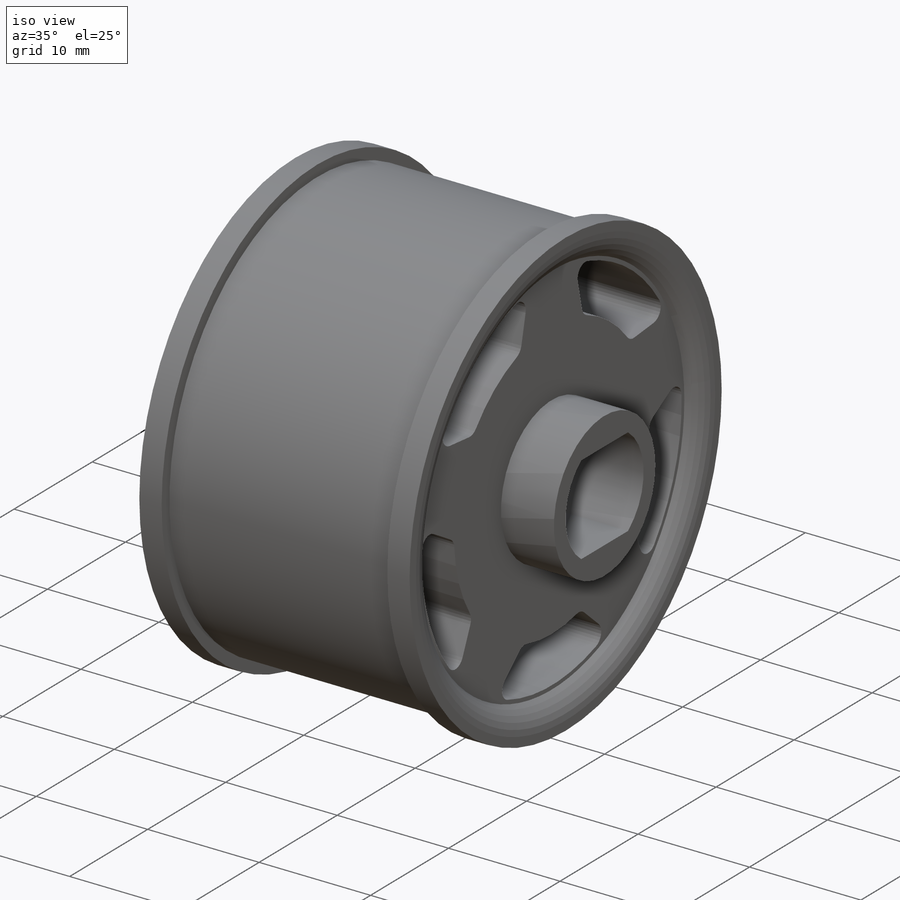
[diagram: iso view]
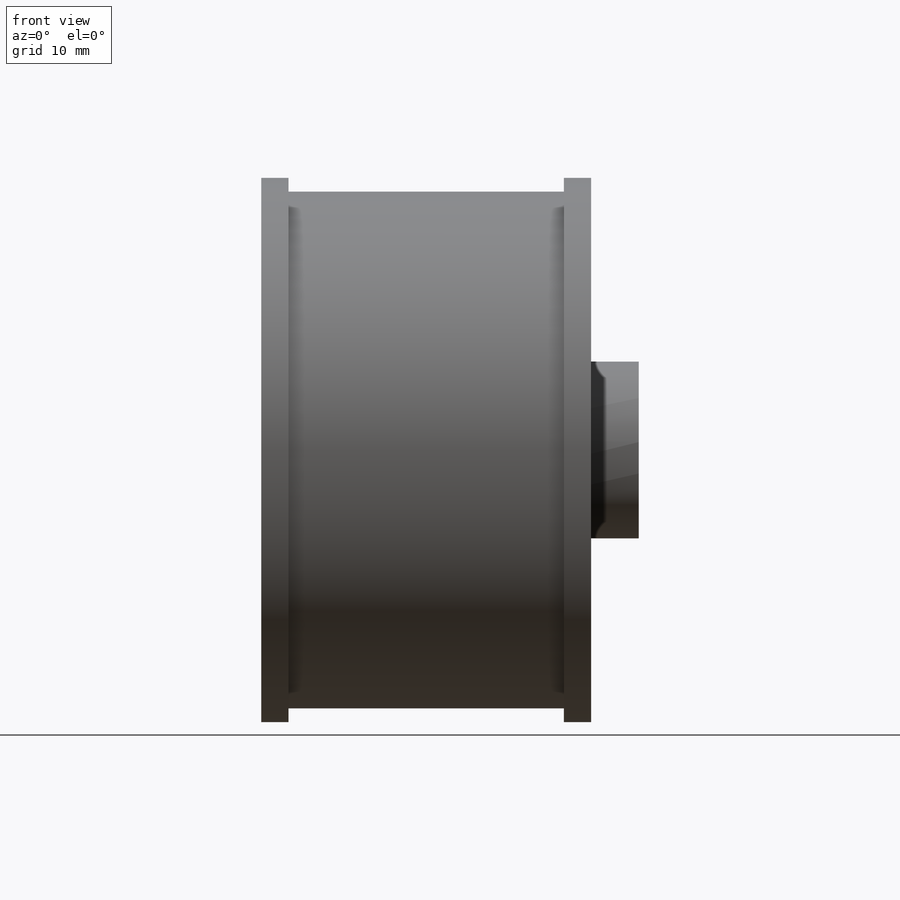
[diagram: front view]
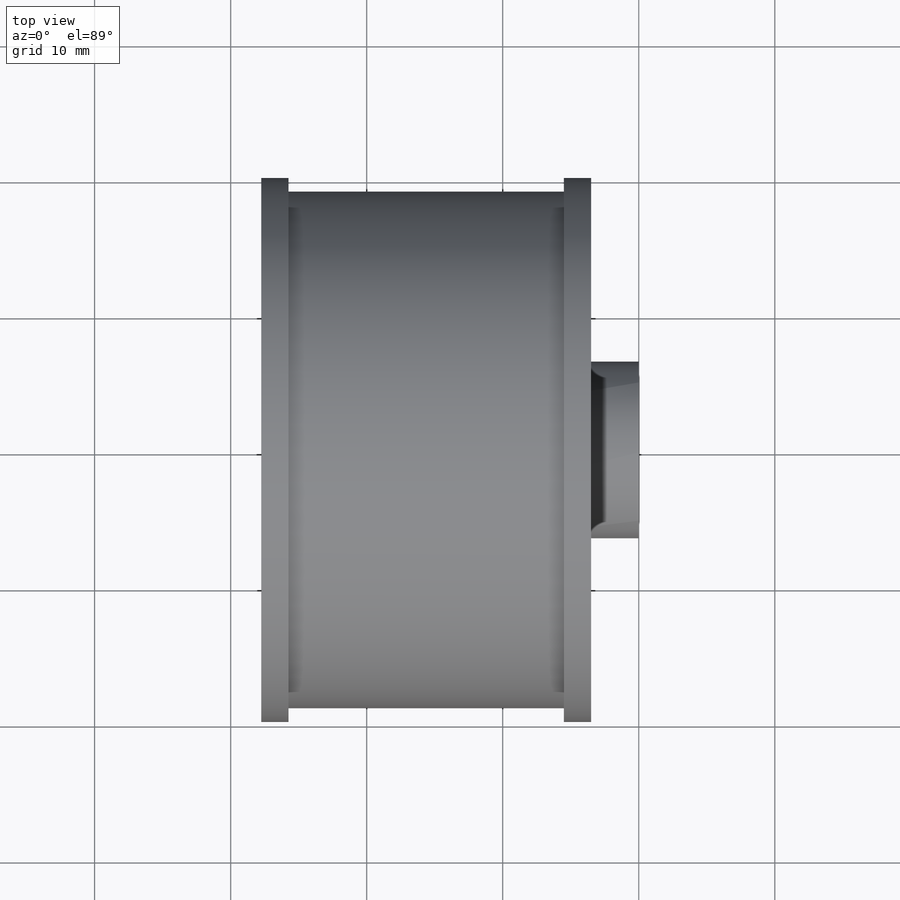
[diagram: top view]
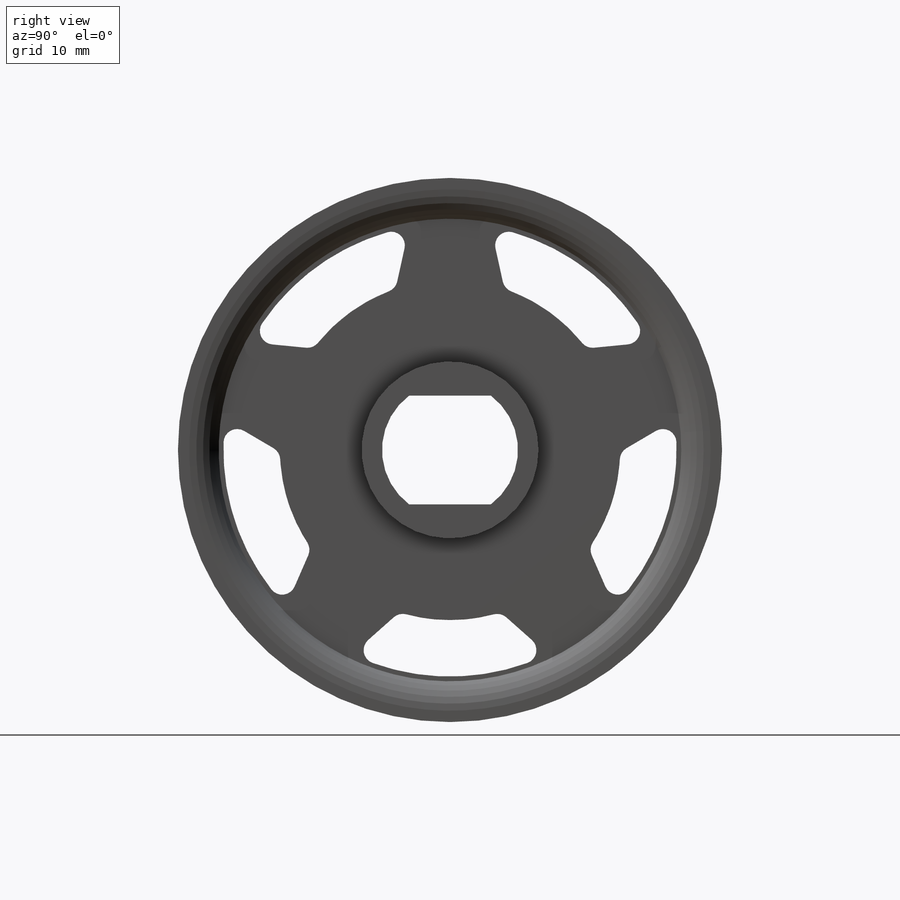
[diagram: right view]
SOLIDWORKS PART (.sldprt)
format: sldprt  version: not decoded by parser v0  size: 453,632 bytes
history: native  units: mm
features: sketch x3, fillet x2, cut_extrude x2, material x1, revolve x1 (+12 scaffold rows collapsed)
feature tree (21):
  scaffold x12  (default folders/planes/origin — collapsed)
  material  "Delrin 2700 NC010, Low Viscosity Acetal Copolymer (SS)"
  sketch  "Sketch1"  dims[D1=6.5mm D2=9.5mm D3=4.75mm D4=3.5mm D5=2.0mm D6=1.0mm D7=24.25mm D8=20.0mm D9=17.0mm D10=14.0mm]
  revolve  "Revolve1"  Angle=360deg
  fillet  "Fillet1"  Radius=2.5mm
  sketch  "Sketch2"  dims[D1=10.0mm D2=8.0mm]
  cut_extrude  "Cut-Extrude1"  [1 undecoded]
  sketch  "Sketch3"  dims[D1=25.0mm D2=3.0mm D3=3.0mm D4=4.0mm D5=5.0]
  cut_extrude  "Cut-Extrude2"  [1 undecoded]
  fillet  "Fillet2"  Radius=1mm
decode coverage: 6 of 8 modeling features carry decoded parameters
note: 2 parameter values undecoded
note: suppression state not decoded; provenance and decode notes live in map.json
